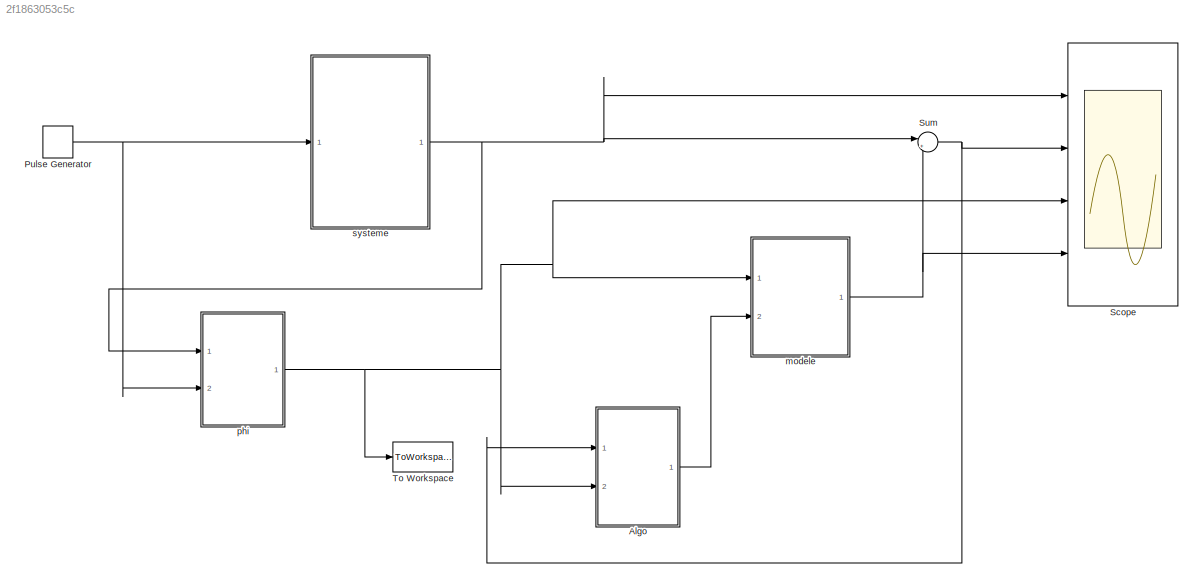
MODEL slx_2f1863053c5c
KIND model
CONFIG AbsTol = auto
CONFIG EnableMultiTasking = off
CONFIG FixedStep = auto
CONFIG MaxStep = auto
CONFIG MinStep = auto
CONFIG RelTol = 1e-3
CONFIG SampleTimeConstraint = Unconstrained
CONFIG Solver = VariableStepAuto
CONFIG SolverName = VariableStepAuto
CONFIG StartTime = 0.0
CONFIG StopTime = 50.0
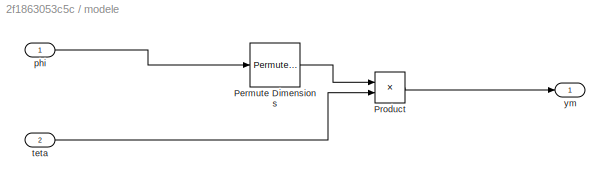
BLOCK [SubSystem]  modele 
  Ports = [2, 1]
  RequestExecContextInheritance = off
BLOCK [PermuteDimensions]  modele /Permute Dimensions
BLOCK [Product]  modele /Product
  InputSameDT = off
  Multiplication = Matrix(*)
  OutDataTypeStr = Inherit: Inherit via internal rule
  Ports = [2, 1]
  RndMeth = Floor
  SaturateOnIntegerOverflow = off
BLOCK [Inport]  modele /phi
  IconDisplay = Port number
BLOCK [Inport]  modele /teta
  IconDisplay = Port number
  Port = 2
BLOCK [Outport]  modele /ym
  IconDisplay = Port number
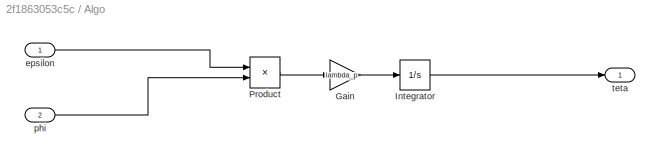
BLOCK [SubSystem] Algo 
  Ports = [2, 1]
  RequestExecContextInheritance = off
BLOCK [Gain] Algo /Gain
  Gain = lambda_p
  OutDataTypeStr = Inherit: Inherit via internal rule
  ParamDataTypeStr = Inherit: Inherit via internal rule
  SaturateOnIntegerOverflow = off
BLOCK [Integrator] Algo /Integrator
  InitialCondition = [0,0]
  Ports = [1, 1]
BLOCK [Product] Algo /Product
  InputSameDT = off
  OutDataTypeStr = Inherit: Inherit via internal rule
  Ports = [2, 1]
  RndMeth = Floor
  SaturateOnIntegerOverflow = off
BLOCK [Inport] Algo /epsilon
  IconDisplay = Port number
BLOCK [Inport] Algo /phi 
  IconDisplay = Port number
  Port = 2
BLOCK [Outport] Algo /teta
  IconDisplay = Port number
BLOCK [DiscretePulseGenerator] Pulse Generator
  Period = 10
  Ports = [0, 1]
  PulseType = Time based
  PulseWidth = 50
BLOCK [Scope] Scope
  Floating = off
  NumInputPorts = 4
  Ports = [4]
  ScopeSpecificationString = Simulink.scopes.TimeScopeBlockCfg('CurrentConfiguration', extmgr.ConfigurationSet(extmgr.Configuration('Core','General UI',true),extmgr.Configuration('Core','Source UI',true),extmgr.Configuration('Sources','WiredSimulink',true),extmgr.Configuration('Visuals','Time Domain',true,'SerializedDisplays',{struct('MinYLimReal','-0.08333','MaxYLimReal','0.74999','YLabelReal','','MinYLimMag','0','MaxYLimMag...<+4944ch>
BLOCK [Sum] Sum
  IconShape = round
  InputSameDT = off
  Inputs = |+-
  OutDataTypeStr = Inherit: Inherit via internal rule
  Ports = [2, 1]
  SaturateOnIntegerOverflow = off
BLOCK [ToWorkspace] To Workspace
  FixptAsFi = on
  MaxDataPoints = inf
  Ports = [1]
  SampleTime = -1
  Save2DSignal = 3-D array (concatenate along third dimension)
  SaveFormat = Structure With Time
  VariableName = phi
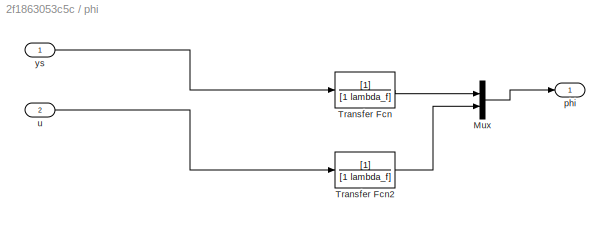
BLOCK [SubSystem] phi
  Ports = [2, 1]
  RequestExecContextInheritance = off
BLOCK [Mux] phi/Mux
  DisplayOption = bar
  Inputs = 2
  Ports = [2, 1]
BLOCK [TransferFcn] phi/Transfer Fcn
  Denominator = [1 lambda_f]
BLOCK [TransferFcn] phi/Transfer Fcn2
  Denominator = [1 lambda_f]
BLOCK [Outport] phi/phi
  IconDisplay = Port number
BLOCK [Inport] phi/u
  IconDisplay = Port number
  Port = 2
BLOCK [Inport] phi/ys
  IconDisplay = Port number
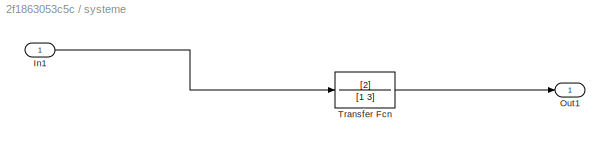
BLOCK [SubSystem] systeme 
  Ports = [1, 1]
  RequestExecContextInheritance = off
BLOCK [Inport] systeme /In1
  IconDisplay = Port number
BLOCK [Outport] systeme /Out1
  IconDisplay = Port number
BLOCK [TransferFcn] systeme /Transfer Fcn
  Denominator = [1 3]
  Numerator = [2]
LINE  modele /Permute Dimensions:1 ->  modele /Product:1
LINE  modele /Product:1 ->  modele /ym:1
LINE  modele /phi:1 ->  modele /Permute Dimensions:1
LINE  modele /teta:1 ->  modele /Product:2
NET  modele :1 -> Scope:4, Sum:2
LINE Algo /Gain:1 -> Algo /Integrator:1
LINE Algo /Integrator:1 -> Algo /teta:1
LINE Algo /Product:1 -> Algo /Gain:1
LINE Algo /epsilon:1 -> Algo /Product:1
LINE Algo /phi :1 -> Algo /Product:2
LINE Algo :1 ->  modele :2
NET Pulse Generator:1 -> phi:2, systeme :1
NET Sum:1 -> Algo :1, Scope:2
LINE phi/Mux:1 -> phi/phi:1
LINE phi/Transfer Fcn2:1 -> phi/Mux:2
LINE phi/Transfer Fcn:1 -> phi/Mux:1
LINE phi/u:1 -> phi/Transfer Fcn2:1
LINE phi/ys:1 -> phi/Transfer Fcn:1
NET phi:1 ->  modele :1, Algo :2, Scope:3, To Workspace:1
LINE systeme /In1:1 -> systeme /Transfer Fcn:1
LINE systeme /Transfer Fcn:1 -> systeme /Out1:1
NET systeme :1 -> Scope:1, Sum:1, phi:1
note: NET lines group one-source signal fan-out (src -> all destinations, sorted); 1:1 wires keep LINE
